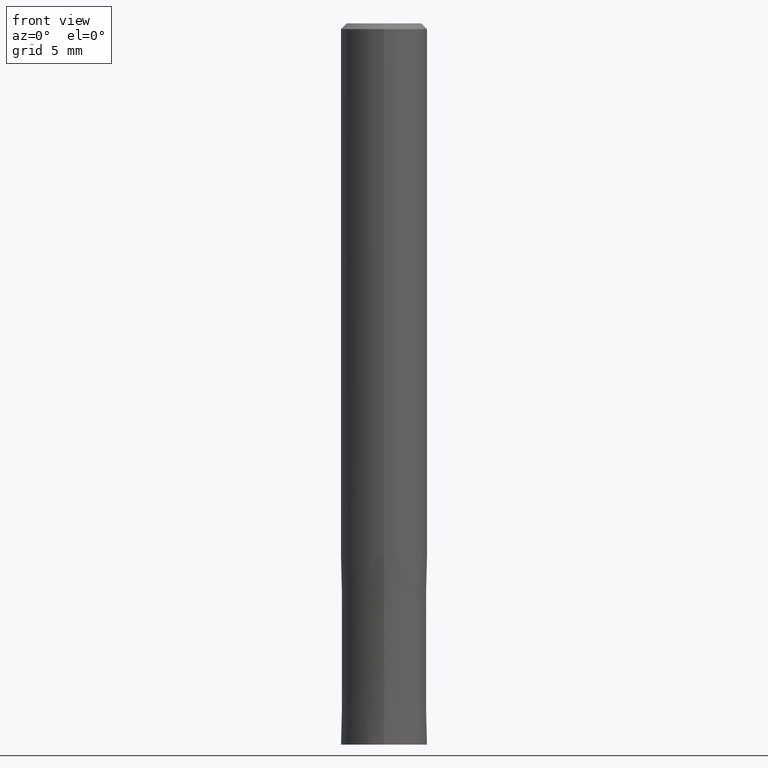
[diagram: clean part render]
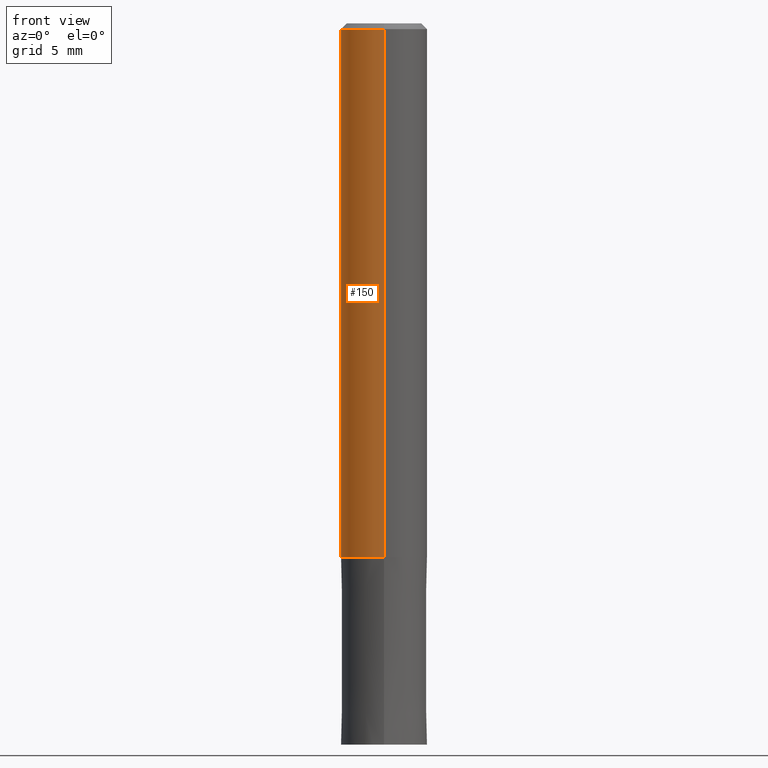
[diagram: same view with one face highlighted and labeled with its STEP entity id]
A machine part, front view. The second image highlights one B-rep face of the part: STEP entity #150.
In plain terms, the highlighted cylindrical surface (partial cylindrical patch) has radius 3 mm, axis along (-0, -0, 1).
Its self-contained STEP definition (entity closure, byte-faithful):
#96=VERTEX_POINT('',#241);
#102=VERTEX_POINT('',#247);
#110=EDGE_CURVE('',#120,#102,#258,.T.);
#120=VERTEX_POINT('',#269);
#134=VERTEX_POINT('',#283);
#136=EDGE_CURVE('',#96,#134,#285,.T.);
#150=ADVANCED_FACE('',(#301),#302,.T.);
#186=EDGE_CURVE('',#120,#134,#344,.T.);
#214=EDGE_CURVE('',#102,#96,#376,.T.);
#241=CARTESIAN_POINT('',(0.0,3.0,-0.399999999999999));
#247=CARTESIAN_POINT('',(3.67381906146713E-016,-3.0,-0.399999999999999));
#258=LINE('',#415,#416);
#269=CARTESIAN_POINT('',(3.67381906146713E-016,-3.0,-37.0));
#283=CARTESIAN_POINT('',(0.0,3.0,-37.0));
#285=LINE('',#453,#454);
#301=FACE_OUTER_BOUND('',#473,.T.);
#302=CYLINDRICAL_SURFACE('',#474,3.0);
#344=CIRCLE('',#524,3.0);
#376=CIRCLE('',#566,3.0);
#415=CARTESIAN_POINT('',(3.67381906146713E-016,-3.0,-18.7));
#416=VECTOR('',#595,1.0);
#453=CARTESIAN_POINT('',(-3.67381906146713E-016,3.0,-18.7));
#454=VECTOR('',#616,1.0);
#473=EDGE_LOOP('',(#635,#636,#637,#638));
#474=AXIS2_PLACEMENT_3D('',#639,#640,#641);
#524=AXIS2_PLACEMENT_3D('',#695,#696,#697);
#566=AXIS2_PLACEMENT_3D('',#744,#745,#746);
#595=DIRECTION('',(-0.0,-0.0,1.0));
#616=DIRECTION('',(0.0,0.0,-1.0));
#635=ORIENTED_EDGE('',*,*,#136,.T.);
#636=ORIENTED_EDGE('',*,*,#186,.F.);
#637=ORIENTED_EDGE('',*,*,#110,.T.);
#638=ORIENTED_EDGE('',*,*,#214,.T.);
#639=CARTESIAN_POINT('',(0.0,0.0,-18.7));
#640=DIRECTION('',(-0.0,-0.0,1.0));
#641=DIRECTION('',(0.0,1.0,0.0));
#695=CARTESIAN_POINT('',(0.0,0.0,-37.0));
#696=DIRECTION('',(0.0,0.0,-1.0));
#697=DIRECTION('',(0.0,1.0,0.0));
#744=CARTESIAN_POINT('',(0.0,0.0,-0.399999999999999));
#745=DIRECTION('',(0.0,0.0,-1.0));
#746=DIRECTION('',(0.0,1.0,0.0));